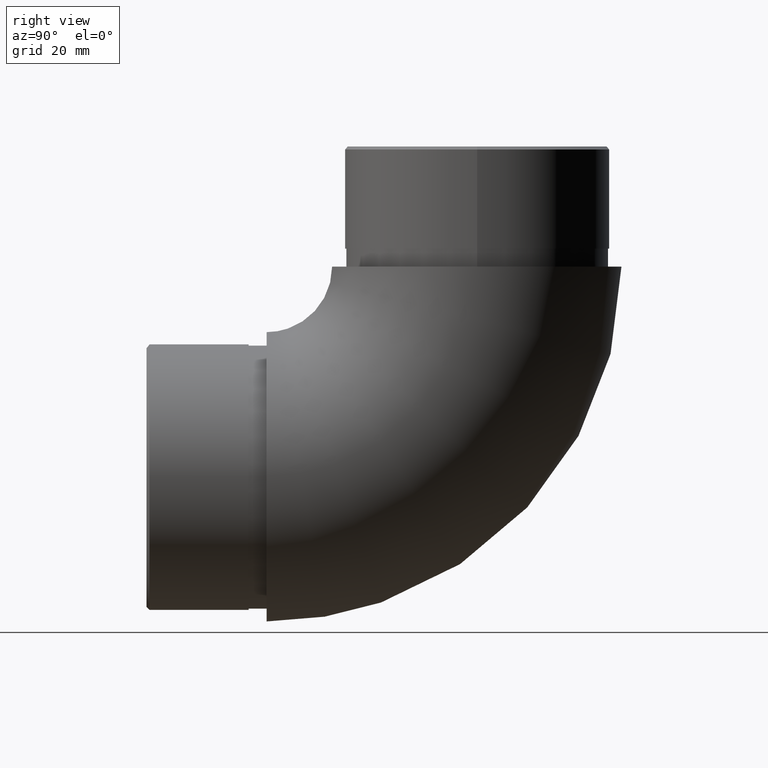
[diagram: clean part render]
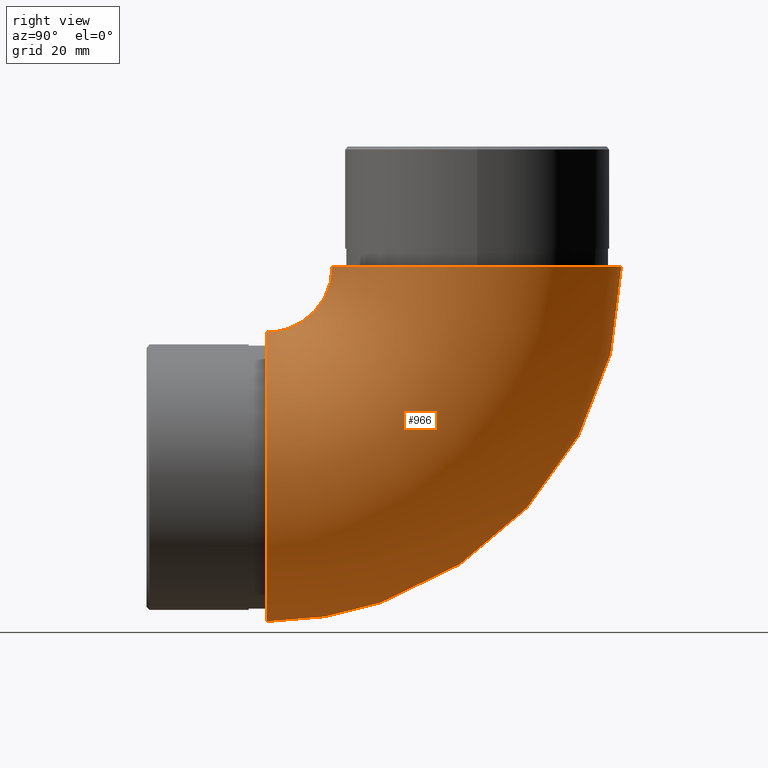
[diagram: same view with one face highlighted and labeled with its STEP entity id]
A machine part, right view. The second image highlights one B-rep face of the part: STEP entity #966.
In plain terms, the highlighted toroidal blend (fillet) surface has major radius 35.05 mm and minor (blend) radius 24.15 mm.
Its self-contained STEP definition (entity closure, byte-faithful):
#97 = DIRECTION ( 'NONE',  ( 0.0000000000000000000, 1.000000000000000000, 0.0000000000000000000 ) ) ;
#501 = TOROIDAL_SURFACE ( 'NONE', #4602, 35.04999999999999000, 24.15000000000000600 ) ;
#966 = ADVANCED_FACE ( 'NONE', ( #13237, #1366 ), #501, .T. ) ;
#1014 = ORIENTED_EDGE ( 'NONE', *, *, #5040, .F. ) ;
#1366 = FACE_OUTER_BOUND ( 'NONE', #4132, .T. ) ;
#2416 = CARTESIAN_POINT ( 'NONE',  ( 0.0000000000000000000, 0.0000000000000000000, 24.15000000000000200 ) ) ;
#3514 = DIRECTION ( 'NONE',  ( 0.0000000000000000000, -1.000000000000000000, 2.873247993336325500E-016 ) ) ;
#3924 = AXIS2_PLACEMENT_3D ( 'NONE', #2416, #97, #6735 ) ;
#4126 = CARTESIAN_POINT ( 'NONE',  ( 0.0000000000000000000, 0.0000000000000000000, 48.30000000000001100 ) ) ;
#4132 = EDGE_LOOP ( 'NONE', ( #10425 ) ) ;
#4602 = AXIS2_PLACEMENT_3D ( 'NONE', #4650, #5763, #5859 ) ;
#4650 = CARTESIAN_POINT ( 'NONE',  ( 0.0000000000000000000, -6.938893903907228400E-015, 59.19999999999999600 ) ) ;
#5040 = EDGE_CURVE ( 'NONE', #14129, #14129, #14055, .T. ) ;
#5354 = EDGE_LOOP ( 'NONE', ( #1014 ) ) ;
#5763 = DIRECTION ( 'NONE',  ( -1.000000000000000000, -0.0000000000000000000, -0.0000000000000000000 ) ) ;
#5859 = DIRECTION ( 'NONE',  ( 0.0000000000000000000, 0.0000000000000000000, 1.000000000000000000 ) ) ;
#6735 = DIRECTION ( 'NONE',  ( 0.0000000000000000000, 0.0000000000000000000, 1.000000000000000000 ) ) ;
#6860 = CARTESIAN_POINT ( 'NONE',  ( 0.0000000000000000000, 35.04999999999998300, 59.19999999999998900 ) ) ;
#6969 = AXIS2_PLACEMENT_3D ( 'NONE', #6860, #13528, #3514 ) ;
#9644 = CARTESIAN_POINT ( 'NONE',  ( 0.0000000000000000000, 10.89999999999997900, 59.19999999999999600 ) ) ;
#10425 = ORIENTED_EDGE ( 'NONE', *, *, #12425, .T. ) ;
#10954 = CIRCLE ( 'NONE', #3924, 24.15000000000000900 ) ;
#12425 = EDGE_CURVE ( 'NONE', #13246, #13246, #10954, .T. ) ;
#13237 = FACE_OUTER_BOUND ( 'NONE', #5354, .T. ) ;
#13246 = VERTEX_POINT ( 'NONE', #4126 ) ;
#13528 = DIRECTION ( 'NONE',  ( 0.0000000000000000000, 2.832769448823989800E-016, 1.000000000000000000 ) ) ;
#14055 = CIRCLE ( 'NONE', #6969, 24.15000000000000600 ) ;
#14129 = VERTEX_POINT ( 'NONE', #9644 ) ;